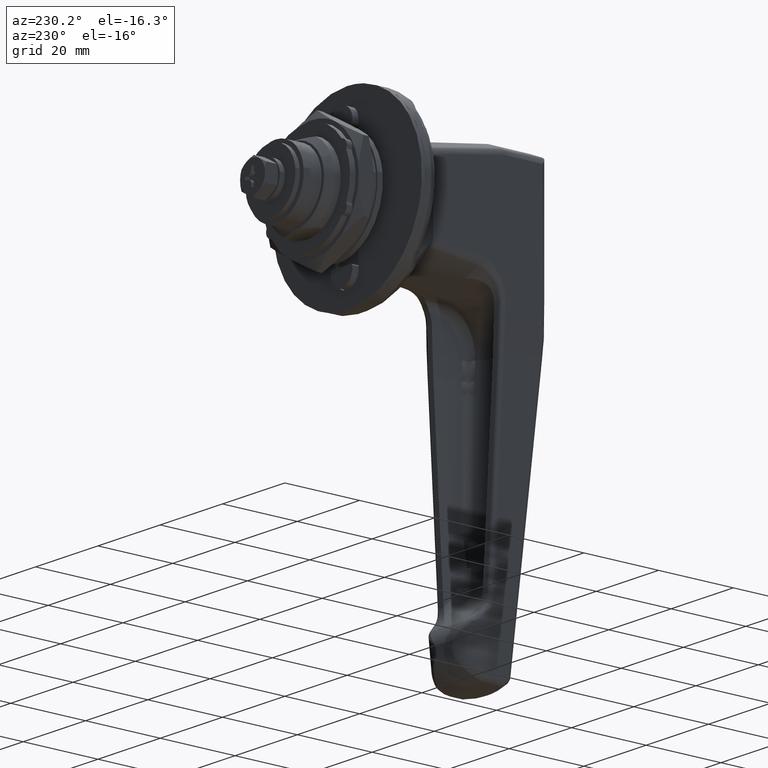
[diagram: clean part render]
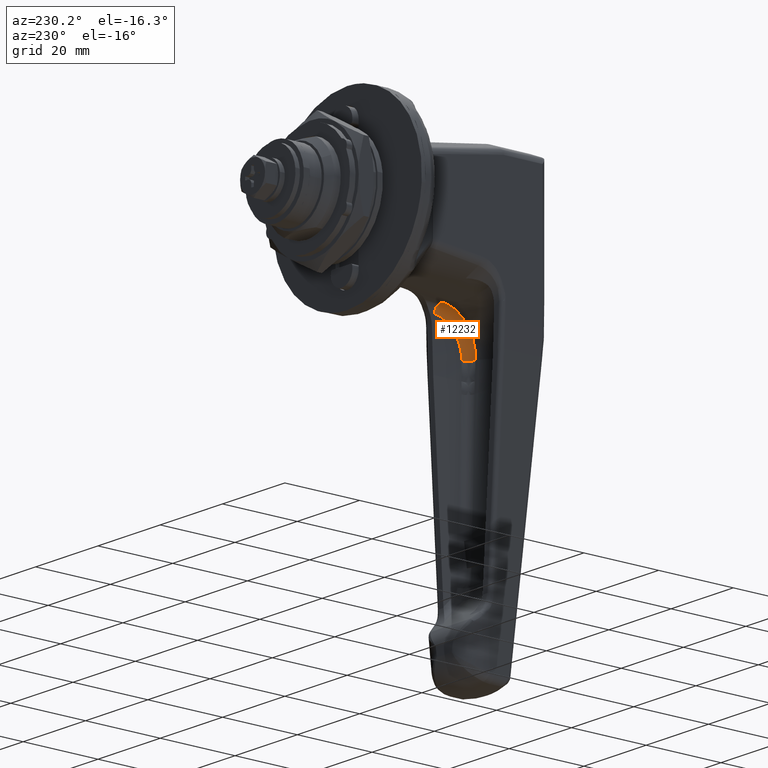
[diagram: same view with one face highlighted and labeled with its STEP entity id]
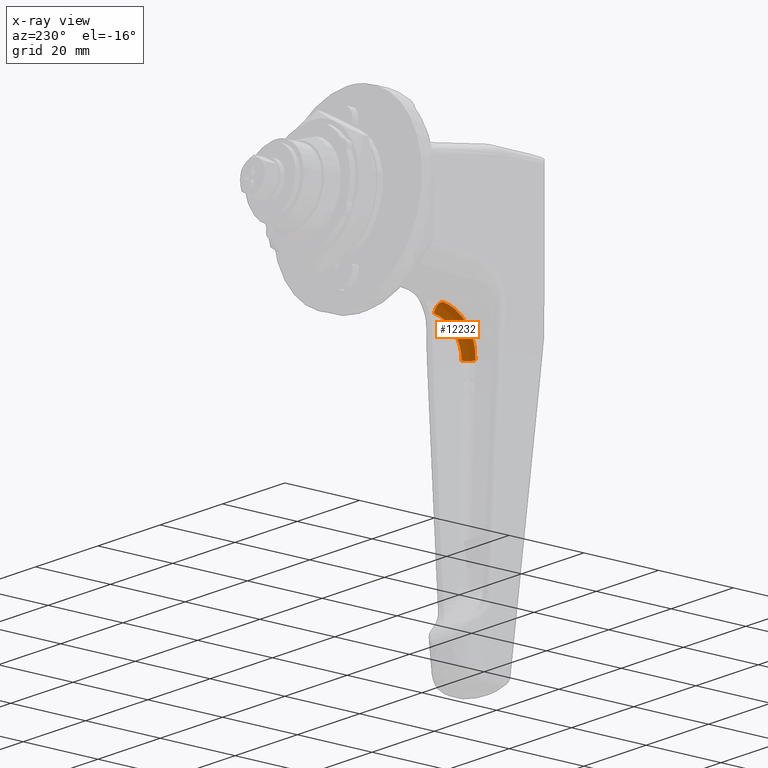
[diagram: x-ray of the same camera — body ghosted, the highlighted face saturated]
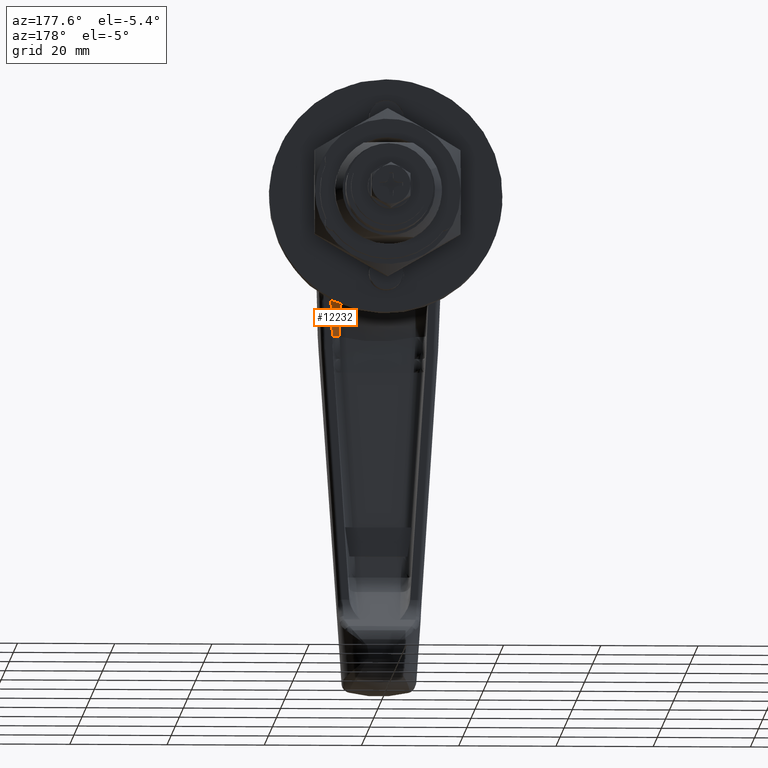
[diagram: same view with one face highlighted and labeled with its STEP entity id]
A machine part, auxiliary view. The second image highlights one B-rep face of the part: STEP entity #12232.
The next image is the same camera in x-ray: the body ghosted, the highlighted face saturated — about 0% of this face is hidden behind the body in this view.
A second angle (auxiliary view) of the same face is appended — the face is thin or edge-on in the first view.
In plain terms, the highlighted face is a freeform B-spline surface patch.
Its self-contained STEP definition (entity closure, byte-faithful):
#11947=CARTESIAN_POINT('',(-38.827132753668501,-9.825811324208001,-25.293020272678952));
#11948=VERTEX_POINT('',#11947);
#11949=CARTESIAN_POINT('',(-40.825359756270203,-7.827575260165410,-25.293235605889549));
#11950=VERTEX_POINT('',#11949);
#11951=CARTESIAN_POINT('',(-38.827132753668501,-9.825811324208004,-25.293020272678952));
#11952=CARTESIAN_POINT('',(-40.821833765164868,-9.822285317113190,-25.376918802749039));
#11953=CARTESIAN_POINT('',(-40.825359756270231,-7.827575260165391,-25.293235605889532));
#11961=(BOUNDED_CURVE()B_SPLINE_CURVE(2,(#11951,#11952,#11953),.UNSPECIFIED.,.F.,.U.)CURVE()GEOMETRIC_REPRESENTATION_ITEM()QUASI_UNIFORM_CURVE()RATIONAL_B_SPLINE_CURVE((1.0,0.707731474151055,1.0))REPRESENTATION_ITEM(''));
#11962=EDGE_CURVE('',#11948,#11950,#11961,.T.);
#11982=CARTESIAN_POINT('',(-31.733740276363132,-7.367207283891379,-14.664477515847787));
#11983=CARTESIAN_POINT('',(-31.759666388851542,-7.367335058542077,-14.667031630746806));
#11984=CARTESIAN_POINT('',(-31.785592512543570,-7.367462833247990,-14.669585746749561));
#11985=CARTESIAN_POINT('',(-32.459675658467944,-7.370784994970036,-14.735993149978787));
#11986=CARTESIAN_POINT('',(-33.090006154351073,-7.379128559498806,-14.862946249967198));
#11987=CARTESIAN_POINT('',(-34.009995141464401,-7.398239615525079,-15.143311234813460));
#11988=CARTESIAN_POINT('',(-34.312385393244732,-7.405711008746296,-15.251867109291059));
#11989=CARTESIAN_POINT('',(-34.908493224986124,-7.422678098883278,-15.499695681352835));
#11990=CARTESIAN_POINT('',(-35.202567313544620,-7.432200583886924,-15.639388387160830));
#11991=CARTESIAN_POINT('',(-36.052461828800901,-7.462782748078907,-16.095220856336340));
#11992=CARTESIAN_POINT('',(-36.582989781878823,-7.486018044667381,-16.450261984428014));
#11993=CARTESIAN_POINT('',(-37.326264135005260,-7.523317123547712,-17.057669694612478));
#11994=CARTESIAN_POINT('',(-37.566295998190611,-7.536224972961261,-17.273815427783831));
#11995=CARTESIAN_POINT('',(-38.022656391838808,-7.562255210388173,-17.726263469280031));
#11996=CARTESIAN_POINT('',(-38.238353921765899,-7.575331015881240,-17.961689438249763));
#11997=CARTESIAN_POINT('',(-38.849416782917608,-7.614315592135065,-18.694594479859035));
#11998=CARTESIAN_POINT('',(-39.209064962556972,-7.639973596562852,-19.218479045071433));
#11999=CARTESIAN_POINT('',(-39.676570150201421,-7.676470437292002,-20.057698275057508));
#12000=CARTESIAN_POINT('',(-39.819591797836758,-7.688254495304435,-20.345384344995619));
#12001=CARTESIAN_POINT('',(-40.076293416339588,-7.710522769752092,-20.927447682798675));
#12002=CARTESIAN_POINT('',(-40.190692368783218,-7.721062842981081,-21.223077921303300));
#12003=CARTESIAN_POINT('',(-40.492835226963109,-7.750708400914422,-22.123511070831590));
#12004=CARTESIAN_POINT('',(-40.640172752273941,-7.767880839476780,-22.743858830112941));
#12005=CARTESIAN_POINT('',(-40.820396801355422,-7.795815794734423,-24.012854935592642));
#12006=CARTESIAN_POINT('',(-40.852183685613589,-7.806368231074463,-24.650984423185687));
#12007=CARTESIAN_POINT('',(-40.824312611692100,-7.813783011614492,-25.318313050741153));
#12008=CARTESIAN_POINT('',(-40.823240577652889,-7.814068214013029,-25.343981204257410));
#12009=CARTESIAN_POINT('',(-40.822168538451812,-7.814353417784822,-25.369649481366395));
#12010=CARTESIAN_POINT('',(-31.733964976334050,-7.374848545998969,-14.662009563178229));
#12011=CARTESIAN_POINT('',(-31.759897837848115,-7.374976335297571,-14.664564893845100));
#12012=CARTESIAN_POINT('',(-31.785830704976942,-7.375104124623842,-14.667120225065235));
#12013=CARTESIAN_POINT('',(-32.460087218549404,-7.378426656805705,-14.733559030730348));
#12014=CARTESIAN_POINT('',(-33.090574675730451,-7.386770544808445,-14.860581681631894));
#12015=CARTESIAN_POINT('',(-34.010767378994423,-7.405880890504196,-15.141097124511676));
#12016=CARTESIAN_POINT('',(-34.313220570165953,-7.413351721166508,-15.249711163732337));
#12017=CARTESIAN_POINT('',(-34.909441774737026,-7.430316727217745,-15.497669411798011));
#12018=CARTESIAN_POINT('',(-35.203566264477658,-7.439837618571626,-15.637433968452838));
#12019=CARTESIAN_POINT('',(-36.053588409927826,-7.470412624870462,-16.093493917660425));
#12020=CARTESIAN_POINT('',(-36.584170062295001,-7.493640110095297,-16.448702948569352));
#12021=CARTESIAN_POINT('',(-37.327479147667866,-7.530921087479184,-17.056368171496985));
#12022=CARTESIAN_POINT('',(-37.567514826337494,-7.543821457768055,-17.272601861197312));
#12023=CARTESIAN_POINT('',(-38.023867990818417,-7.569834131921616,-17.725223693383185));
#12024=CARTESIAN_POINT('',(-38.239554448221028,-7.582899837738392,-17.960735225773654));
#12025=CARTESIAN_POINT('',(-38.850564241248641,-7.621849353680530,-18.693891227161927));
#12026=CARTESIAN_POINT('',(-39.210150533986614,-7.647478644822052,-19.217932697037654));
#12027=CARTESIAN_POINT('',(-39.677533743215754,-7.683924076696485,-20.057363179478958));
#12028=CARTESIAN_POINT('',(-39.820509496411830,-7.695689218703866,-20.345115777750490));
#12029=CARTESIAN_POINT('',(-40.077112801478037,-7.717917289044333,-20.927301162287289));
#12030=CARTESIAN_POINT('',(-40.191459097899461,-7.728435985260658,-21.222987134720679));
#12031=CARTESIAN_POINT('',(-40.493435524945845,-7.758012932276992,-22.123572185365308));
#12032=CARTESIAN_POINT('',(-40.640651975831204,-7.775135089627966,-22.743998852013949));
#12033=CARTESIAN_POINT('',(-40.820628026955553,-7.802961124819952,-24.013107482315384));
#12034=CARTESIAN_POINT('',(-40.852290180694013,-7.813455915577293,-24.651268955970480));
#12035=CARTESIAN_POINT('',(-40.824295464288888,-7.820809086146070,-25.318607523382887));
#12036=CARTESIAN_POINT('',(-40.823218709404365,-7.821091909597906,-25.344275226234441));
#12037=CARTESIAN_POINT('',(-40.822141951923790,-7.821374733731633,-25.369942990971236));
#12038=CARTESIAN_POINT('',(-31.810962098780216,-9.993252063224045,-13.816325190708934));
#12039=CARTESIAN_POINT('',(-31.839204685951110,-9.993287859381333,-13.819328441445368));
#12040=CARTESIAN_POINT('',(-31.867445192617417,-9.993323652901678,-13.822331470945803));
#12041=CARTESIAN_POINT('',(-32.600968858449875,-9.994253359814035,-13.900332663834872));
#12042=CARTESIAN_POINT('',(-33.284690065012782,-9.996042609243835,-14.053225758828809));
#12043=CARTESIAN_POINT('',(-34.272862540869603,-9.999307297084767,-14.389634555842170));
#12044=CARTESIAN_POINT('',(-34.596010439797482,-10.000487469588021,-14.519710671653387));
#12045=CARTESIAN_POINT('',(-35.228893192598228,-10.002844577893651,-14.815264844575644));
#12046=CARTESIAN_POINT('',(-35.538970554449556,-10.004021815364096,-14.981225142406325));
#12047=CARTESIAN_POINT('',(-36.428145945492624,-10.007138812910881,-15.519333851385271));
#12048=CARTESIAN_POINT('',(-36.973627951084772,-10.008697946464368,-15.934266882565753));
#12049=CARTESIAN_POINT('',(-37.723422644883229,-10.008870630177993,-16.632232991754073));
#12050=CARTESIAN_POINT('',(-37.962973254097079,-10.008561007734299,-16.878850588284383));
#12051=CARTESIAN_POINT('',(-38.413480200230843,-10.006977455171272,-17.390864395232150));
#12052=CARTESIAN_POINT('',(-38.623847840134758,-10.005710440457886,-17.655287938463506));
#12053=CARTESIAN_POINT('',(-39.212809893558955,-10.000212289835302,-18.471878605786049));
#12054=CARTESIAN_POINT('',(-39.549606400202180,-9.994291197433354,-19.047090834401864));
#12055=CARTESIAN_POINT('',(-39.974481041629510,-9.980887682353972,-19.954097874223059));
#12056=CARTESIAN_POINT('',(-40.101937368060767,-9.975673561475974,-20.262755065600224));
#12057=CARTESIAN_POINT('',(-40.325979539545294,-9.963808518245052,-20.882799401131741));
#12058=CARTESIAN_POINT('',(-40.423220699826317,-9.957138703984628,-21.195544791169635));
#12059=CARTESIAN_POINT('',(-40.672326988757234,-9.934795705996404,-22.141784587724299));
#12060=CARTESIAN_POINT('',(-40.782127603140680,-9.916723446894084,-22.785335898118564));
#12061=CARTESIAN_POINT('',(-40.887645196253771,-9.873924702017780,-24.086304249728897));
#12062=CARTESIAN_POINT('',(-40.882883557690498,-9.849570665286855,-24.733008119118352));
#12063=CARTESIAN_POINT('',(-40.819413425136752,-9.821203580097622,-25.402446863331122));
#12064=CARTESIAN_POINT('',(-40.816994735287970,-9.820122580606583,-25.427957518971223));
#12065=CARTESIAN_POINT('',(-40.814577693931454,-9.819042317886037,-25.453450787463201));
#12066=CARTESIAN_POINT('',(-31.559401873038311,-9.999504674797416,-16.557555087665868));
#12067=CARTESIAN_POINT('',(-31.580130334263139,-9.999509302942860,-16.559650872042052));
#12068=CARTESIAN_POINT('',(-31.600858799980706,-9.999513931089316,-16.561746656872497));
#12069=CARTESIAN_POINT('',(-32.139800483536725,-9.999634263248925,-16.616237221696682));
#12070=CARTESIAN_POINT('',(-32.643703145069892,-9.999863276394734,-16.720943960387334));
#12071=CARTESIAN_POINT('',(-33.379074620327387,-10.000009480966892,-16.952421399793867));
#12072=CARTESIAN_POINT('',(-33.620766467819813,-10.000022164589341,-17.042074238630899));
#12073=CARTESIAN_POINT('',(-34.097184073857008,-9.999872494760176,-17.246751400994107));
#12074=CARTESIAN_POINT('',(-34.332194281465824,-9.999707985936464,-17.362122232965756));
#12075=CARTESIAN_POINT('',(-35.011335819563804,-9.998778673353197,-17.738519415938285));
#12076=CARTESIAN_POINT('',(-35.435203208425762,-9.997588245189769,-18.031604205679145));
#12077=CARTESIAN_POINT('',(-36.028942546275829,-9.994124061104733,-18.532604683649126));
#12078=CARTESIAN_POINT('',(-36.220664123465085,-9.992678018209556,-18.710823883279904));
#12079=CARTESIAN_POINT('',(-36.585137304552440,-9.989095653900233,-19.083718320345884));
#12080=CARTESIAN_POINT('',(-36.757385155822703,-9.986968445432629,-19.277671774329288));
#12081=CARTESIAN_POINT('',(-37.245298944539705,-9.979392933053486,-19.881190045947406));
#12082=CARTESIAN_POINT('',(-37.532389259225930,-9.972759316644705,-20.312230637471842));
#12083=CARTESIAN_POINT('',(-37.905460021517960,-9.959582190620971,-21.002036114190489));
#12084=CARTESIAN_POINT('',(-38.019568123244639,-9.954661046553099,-21.238393883227182));
#12085=CARTESIAN_POINT('',(-38.224327592040765,-9.943822075575444,-21.716383383283592));
#12086=CARTESIAN_POINT('',(-38.315552866720516,-9.937885315884627,-21.959045072936942));
#12087=CARTESIAN_POINT('',(-38.556407583596020,-9.918407587102623,-22.697811968600440));
#12088=CARTESIAN_POINT('',(-38.673736125585840,-9.903145130410550,-23.206342144250971));
#12089=CARTESIAN_POINT('',(-38.816919240445522,-9.867727421415362,-24.245726490241829));
#12090=CARTESIAN_POINT('',(-38.841903537456062,-9.847876943571269,-24.767967769445956));
#12091=CARTESIAN_POINT('',(-38.819203177488738,-9.824941644330675,-25.313714359313597));
#12092=CARTESIAN_POINT('',(-38.818330058291281,-9.824059488713068,-25.334705296252874));
#12093=CARTESIAN_POINT('',(-38.817456936986474,-9.823177330966313,-25.355696283855451));
#12094=CARTESIAN_POINT('',(-31.558666972674139,-9.999522940985987,-16.565563233005680));
#12095=CARTESIAN_POINT('',(-31.579373454318148,-9.999527478751579,-16.567656662955130));
#12096=CARTESIAN_POINT('',(-31.600079944919674,-9.999532016519149,-16.569750093810182));
#12097=CARTESIAN_POINT('',(-32.138451842619070,-9.999649999164349,-16.624179613704360));
#12098=CARTESIAN_POINT('',(-32.641823854318737,-9.999874478096709,-16.728765365141314));
#12099=CARTESIAN_POINT('',(-33.376438383806281,-10.000011552065361,-16.959980365538001));
#12100=CARTESIAN_POINT('',(-33.617883193861147,-10.000020788931735,-17.049531516395138));
#12101=CARTESIAN_POINT('',(-34.093820134779094,-9.999863660417121,-17.253978852385174));
#12102=CARTESIAN_POINT('',(-34.328596288356685,-9.999695124291014,-17.369220857223716));
#12103=CARTESIAN_POINT('',(-35.007069890470198,-9.998753501481597,-17.745201248662841));
#12104=CARTESIAN_POINT('',(-35.430535980387184,-9.997554540902625,-18.037967046375471));
#12105=CARTESIAN_POINT('',(-36.023737289409034,-9.994078761263211,-18.538442416890621));
#12106=CARTESIAN_POINT('',(-36.215288547934087,-9.992629014156059,-18.716476101158410));
#12107=CARTESIAN_POINT('',(-36.579445602847706,-9.989039987165603,-19.088988239677821));
#12108=CARTESIAN_POINT('',(-36.751548201637576,-9.986909833938695,-19.282745425252067));
#12109=CARTESIAN_POINT('',(-37.239060029169458,-9.979326915527594,-19.885658928222171));
#12110=CARTESIAN_POINT('',(-37.525931438872398,-9.972690385534021,-20.316280794197311));
#12111=CARTESIAN_POINT('',(-37.898738966764270,-9.959512981378962,-21.005440260509346));
#12112=CARTESIAN_POINT('',(-38.012770627055112,-9.954592455216345,-21.241578669576516));
#12113=CARTESIAN_POINT('',(-38.217400669493145,-9.943756201423188,-21.719130827591933));
#12114=CARTESIAN_POINT('',(-38.308572777665837,-9.937821553292897,-21.961573602279334));
#12115=CARTESIAN_POINT('',(-38.549299790852935,-9.918352536162466,-22.699679774800007));
#12116=CARTESIAN_POINT('',(-38.666586781827881,-9.903099087703007,-23.207769734150624));
#12117=CARTESIAN_POINT('',(-38.809767184257758,-9.867706016700293,-24.246277116855921));
#12118=CARTESIAN_POINT('',(-38.834791412734297,-9.847871041524227,-24.768089591997320));
#12119=CARTESIAN_POINT('',(-38.812170328988188,-9.824954787568734,-25.313402370982107));
#12120=CARTESIAN_POINT('',(-38.811300230709179,-9.824073335850866,-25.334377303741228));
#12121=CARTESIAN_POINT('',(-38.810430128236163,-9.823191879884288,-25.355352337602334));
#12129=(BOUNDED_SURFACE()B_SPLINE_SURFACE(3,2,((#11982,#12010,#12038,#12066,#12094),(#11983,#12011,#12039,#12067,#12095),(#11984,#12012,#12040,#12068,#12096),(#11985,#12013,#12041,#12069,#12097),(#11986,#12014,#12042,#12070,#12098),(#11987,#12015,#12043,#12071,#12099),(#11988,#12016,#12044,#12072,#12100),(#11989,#12017,#12045,#12073,#12101),(#11990,#12018,#12046,#12074,#12102),(#11991,#12019,#12047,#12075,#12103),(#11992,#12020,#12048,#12076,#12104),(#11993,#12021,#12049,#12077,#12105),(#11994,#12022,#12050,#12078,#12106),(#11995,#12023,#12051,#12079,#12107),(#11996,#12024,#12052,#12080,#12108),(#11997,#12025,#12053,#12081,#12109),(#11998,#12026,#12054,#12082,#12110),(#11999,#12027,#12055,#12083,#12111),(#12000,#12028,#12056,#12084,#12112),(#12001,#12029,#12057,#12085,#12113),(#12002,#12030,#12058,#12086,#12114),(#12003,#12031,#12059,#12087,#12115),(#12004,#12032,#12060,#12088,#12116),(#12005,#12033,#12061,#12089,#12117),(#12006,#12034,#12062,#12090,#12118),(#12007,#12035,#12063,#12091,#12119),(#12008,#12036,#12064,#12092,#12120),(#12009,#12037,#12065,#12093,#12121)),.UNSPECIFIED.,.F.,.F.,.U.)B_SPLINE_SURFACE_WITH_KNOTS((4,2,2,2,2,2,2,2,2,2,2,2,2,4),(3,1,1,3),(0.0,0.078176327175923,2.032584498841028,3.009788584673580,3.986992670506132,5.941400842171238,6.918604928003789,7.895809013836343,9.850217185501448,10.827421271334000,11.804625357166550,13.759033528831660,15.713441700496761,15.791618025626240),(0.0,0.020347643788673,4.089470924559251,4.109840233053459),.UNSPECIFIED.)GEOMETRIC_REPRESENTATION_ITEM()RATIONAL_B_SPLINE_SURFACE(((1.004111114820138,1.002055557410069,0.588929480035054,1.002057746019544,1.004115492039089),(1.004110897863588,1.002055448931794,0.588951173528348,1.002057637425770,1.004115274851539),(1.004110680907038,1.002055340453519,0.588972867021641,1.002057528831995,1.004115057663989),(1.004105040036762,1.002052520018381,0.589536897845123,1.002054705393860,1.004109410787721),(1.004090067001077,1.002045033500539,0.591034052226254,1.002047210904913,1.004094421809826),(1.004054713781869,1.002027356890935,0.594569021897021,1.002029515474529,1.004059030949057),(1.004040776878013,1.002020388439007,0.595962573419040,1.002022539603095,1.004045079206190),(1.004008758280162,1.002004379140081,0.599164114179368,1.002006513258621,1.004013026517242),(1.003990622806403,1.001995311403202,0.600977480858291,1.001997435867068,1.003994871734137),(1.003931616367233,1.001965808183617,0.606877536850881,1.001967901234580,1.003935802469160),(1.003885871867725,1.001942935933862,0.611451531015782,1.001945004632102,1.003890009264203),(1.003809506605997,1.001904753302999,0.619087296305474,1.001906781347123,1.003813562694246),(1.003782611851489,1.001891305925744,0.621776503784177,1.001893319652070,1.003786639304140),(1.003727086855770,1.001863543427885,0.627328450119876,1.001865527594702,1.003731055189405),(1.003698561224277,1.001849280612138,0.630180729047425,1.001851249592937,1.003702499185874),(1.003611075897775,1.001805537948888,0.638928390017156,1.001807460355649,1.003614920711298),(1.003550242483258,1.001775121241629,0.645011125340984,1.001777011262871,1.003554022525743),(1.003456008169415,1.001728004084707,0.654433617799858,1.001729843938994,1.003459687877989),(1.003424209140481,1.001712104570241,0.657613203856170,1.001713927495870,1.003427854991740),(1.003360895689911,1.001680447844956,0.663943918074883,1.001682237064784,1.003364474129568),(1.003329239574541,1.001664619787271,0.667109214198836,1.001666392154523,1.003332784309046),(1.003234312153208,1.001617156076604,0.676601010500727,1.001618877907916,1.003237755815832),(1.003170886086676,1.001585443043338,0.682942985193508,1.001587131108897,1.003174262217793),(1.003044885911591,1.001522442955796,0.695541747269941,1.001524063943399,1.003048127886797),(1.002983339767168,1.001491669883584,0.701695748482962,1.001493258106236,1.002986516212472),(1.002920561965261,1.001460280982631,0.707972903172414,1.001461835784642,1.002923671569283),(1.002918147434470,1.001459073717235,0.708214332193773,1.001460627233837,1.002921254467674),(1.002915732903679,1.001457866451839,0.708455761215132,1.001459418683032,1.002918837366065)))REPRESENTATION_ITEM('')SURFACE());
#12130=CARTESIAN_POINT('',(-31.622391391173402,-9.999500490138122,-16.555808435561548));
#12131=VERTEX_POINT('',#12130);
#12132=CARTESIAN_POINT('',(-31.812009514778701,-7.382904629259170,-14.667201120375919));
#12133=VERTEX_POINT('',#12132);
#12134=CARTESIAN_POINT('',(-31.622391391173402,-9.999500490138116,-16.555808435561548));
#12135=CARTESIAN_POINT('',(-31.723692956091202,-9.997224180962785,-15.543700234774496));
#12136=CARTESIAN_POINT('',(-31.783359026799442,-9.173874647270553,-14.949422770862490));
#12137=CARTESIAN_POINT('',(-31.843025097507685,-8.350525113578323,-14.355145306950481));
#12138=CARTESIAN_POINT('',(-31.812009514778779,-7.382904629259178,-14.667201120375950));
#12146=(BOUNDED_CURVE()B_SPLINE_CURVE(2,(#12134,#12135,#12136,#12137,#12138),.UNSPECIFIED.,.F.,.U.)B_SPLINE_CURVE_WITH_KNOTS((3,2,3),(0.0,0.500000000000000,1.0),.UNSPECIFIED.)CURVE()GEOMETRIC_REPRESENTATION_ITEM()RATIONAL_B_SPLINE_CURVE((1.0,0.891345769192557,1.0,0.891345769192557,1.0))REPRESENTATION_ITEM(''));
#12147=EDGE_CURVE('',#12131,#12133,#12146,.T.);
#12148=ORIENTED_EDGE('',*,*,#12147,.F.);
#12149=CARTESIAN_POINT('',(-31.622391391173402,-9.999500490138139,-16.555808435561499));
#12150=CARTESIAN_POINT('',(-32.144199900607923,-9.999619155184787,-16.608570102631258));
#12151=CARTESIAN_POINT('',(-32.651160492658612,-9.999854731590432,-16.714272982502951));
#12152=CARTESIAN_POINT('',(-33.390545915764427,-10.000008482381251,-16.947902098866692));
#12153=CARTESIAN_POINT('',(-33.633472378663221,-10.000023266587840,-17.038384002194888));
#12154=CARTESIAN_POINT('',(-33.932649088009718,-9.999930688418315,-17.167465062389439));
#12155=CARTESIAN_POINT('',(-33.992259868547137,-9.999906542421782,-17.194081965870922));
#12156=CARTESIAN_POINT('',(-34.111028734041888,-9.999845027740804,-17.248929896109971));
#12157=CARTESIAN_POINT('',(-34.170239607999022,-9.999807599850207,-17.277189207754539));
#12158=CARTESIAN_POINT('',(-34.346218983932459,-9.999673175586144,-17.363921524035820));
#12159=CARTESIAN_POINT('',(-34.461626347194922,-9.999553966365109,-17.424475151758070));
#12160=CARTESIAN_POINT('',(-35.029351947760993,-9.998773484799912,-17.740546475001171));
#12161=CARTESIAN_POINT('',(-35.453994854136042,-9.997570386729732,-18.035604693482060));
#12162=CARTESIAN_POINT('',(-35.949126474300591,-9.994655347216233,-18.455389430077489));
#12163=CARTESIAN_POINT('',(-36.046353378511192,-9.994001009713401,-18.541917074521979));
#12164=CARTESIAN_POINT('',(-36.237176596275987,-9.992528962592340,-18.720159018522800));
#12165=CARTESIAN_POINT('',(-36.330920413163952,-9.991709314050691,-18.812044658714051));
#12166=CARTESIAN_POINT('',(-36.603922345504259,-9.989001116950519,-19.092714111334320));
#12167=CARTESIAN_POINT('',(-36.775838442229507,-9.986858212227494,-19.287248512433401));
#12168=CARTESIAN_POINT('',(-37.262542135830770,-9.979233700726027,-19.892221663410542));
#12169=CARTESIAN_POINT('',(-37.548534995771973,-9.972564353406948,-20.323846491331501));
#12170=CARTESIAN_POINT('',(-37.857897470445593,-9.961547525449976,-20.898778730896460));
#12171=CARTESIAN_POINT('',(-37.917382179263853,-9.959206506222838,-21.015667565774720));
#12172=CARTESIAN_POINT('',(-38.030358167853741,-9.954286060595951,-21.250733626835860));
#12173=CARTESIAN_POINT('',(-38.084003258702943,-9.951701694792616,-21.369181647738881));
#12174=CARTESIAN_POINT('',(-38.236581789974991,-9.943562676141596,-21.727214773389068));
#12175=CARTESIAN_POINT('',(-38.417772199121913,-9.931681742062024,-22.211751159424619));
#12176=CARTESIAN_POINT('',(-38.555367097087498,-9.917593744837120,-22.710310703848759));
#12177=CARTESIAN_POINT('',(-38.642122840964177,-9.906139146307636,-23.089517175658639));
#12178=CARTESIAN_POINT('',(-38.668296962259312,-9.902172786914942,-23.216801884433789));
#12179=CARTESIAN_POINT('',(-38.715086681644003,-9.893932694226093,-23.473158593195581));
#12180=CARTESIAN_POINT('',(-38.735732902698601,-9.889650220904688,-23.602482034864192));
#12181=CARTESIAN_POINT('',(-38.824316732121709,-9.867571006953515,-24.249858511988741));
#12182=CARTESIAN_POINT('',(-38.848938276051690,-9.847783482228701,-24.770210275184020));
#12183=CARTESIAN_POINT('',(-38.827132753668501,-9.825811324207972,-25.293020272678952));
#12184=B_SPLINE_CURVE_WITH_KNOTS('',3,(#12149,#12150,#12151,#12152,#12153,#12154,#12155,#12156,#12157,#12158,#12159,#12160,#12161,#12162,#12163,#12164,#12165,#12166,#12167,#12168,#12169,#12170,#12171,#12172,#12173,#12174,#12175,#12176,#12177,#12178,#12179,#12180,#12181,#12182,#12183),.UNSPECIFIED.,.F.,.U.,(4,2,2,2,2,2,2,2,2,2,2,2,2,1,2,2,2,4),(0.0,0.124999999999995,0.187499999999992,0.203124999999992,0.218749999999992,0.249999999999993,0.374999999999994,0.406249999999994,0.437499999999994,0.499999999999997,0.625000000000000,0.656250000000001,0.687500000000001,0.750000000000001,0.812500000000001,0.843750000000001,0.875000000000001,1.0),.UNSPECIFIED.);
#12185=EDGE_CURVE('',#12131,#11948,#12184,.T.);
#12186=ORIENTED_EDGE('',*,*,#12185,.T.);
#12187=ORIENTED_EDGE('',*,*,#11962,.T.);
#12188=CARTESIAN_POINT('',(-40.825359756270252,-7.827575260165362,-25.293235605889549));
#12189=CARTESIAN_POINT('',(-40.852529589947871,-7.820530363926583,-24.648407393807950));
#12190=CARTESIAN_POINT('',(-40.820566202609633,-7.810024875115288,-24.006983623195779));
#12191=CARTESIAN_POINT('',(-40.706864501845743,-7.792563958881102,-23.209449950297842));
#12192=CARTESIAN_POINT('',(-40.680398518596917,-7.788856032422538,-23.050239457069939));
#12193=CARTESIAN_POINT('',(-40.620489413005473,-7.781076245812965,-22.734825041231069));
#12194=CARTESIAN_POINT('',(-40.587003924303197,-7.776997510125772,-22.578296538648949));
#12195=CARTESIAN_POINT('',(-40.476099469983687,-7.764217295472520,-22.112198324796289));
#12196=CARTESIAN_POINT('',(-40.300410775494612,-7.745725887881040,-21.500018489191589));
#12197=CARTESIAN_POINT('',(-40.069509277954729,-7.724577967341402,-20.906260329578298));
#12198=CARTESIAN_POINT('',(-39.875234680183937,-7.707820083251415,-20.467977362084540));
#12199=CARTESIAN_POINT('',(-39.806954206058933,-7.702084763393725,-20.323057590877770));
#12200=CARTESIAN_POINT('',(-39.663209075309503,-7.690333621747667,-20.035612932426130));
#12201=CARTESIAN_POINT('',(-39.587580160200133,-7.684305629135382,-19.892824987707488));
#12202=CARTESIAN_POINT('',(-39.352011862245106,-7.666012022334219,-19.472225588536450));
#12203=CARTESIAN_POINT('',(-39.013776248275363,-7.640971663054387,-18.929774417885181));
#12204=CARTESIAN_POINT('',(-38.628162453240513,-7.615126729444379,-18.423303502030588));
#12205=CARTESIAN_POINT('',(-38.218672616583383,-7.589139521408146,-17.934951453087379));
#12206=CARTESIAN_POINT('',(-38.001992289595151,-7.576074513967380,-17.699832893952919));
#12207=CARTESIAN_POINT('',(-37.658430348534452,-7.556585735111536,-17.361214623862139));
#12208=CARTESIAN_POINT('',(-37.540669661765172,-7.550101282602617,-17.250588624770050));
#12209=CARTESIAN_POINT('',(-37.301341434045753,-7.537340881482384,-17.036342153163449));
#12210=CARTESIAN_POINT('',(-37.179494773899123,-7.531048574052822,-16.932432329714050));
#12211=CARTESIAN_POINT('',(-36.807485859982407,-7.512488047776656,-16.630223664007111));
#12212=CARTESIAN_POINT('',(-36.550869059587612,-7.500535755956782,-16.441424437285129));
#12213=CARTESIAN_POINT('',(-36.020477712203181,-7.477762918481962,-16.089059701908312));
#12214=CARTESIAN_POINT('',(-35.746703908397670,-7.466941996615193,-15.925493121059951));
#12215=CARTESIAN_POINT('',(-35.322869990756907,-7.451790204280999,-15.699503562191421));
#12216=CARTESIAN_POINT('',(-35.179392752995220,-7.446919724401992,-15.627405917310741));
#12217=CARTESIAN_POINT('',(-34.960803630721607,-7.439915210426696,-15.524215473342689));
#12218=CARTESIAN_POINT('',(-34.887356229436541,-7.437630158531755,-15.490638918098300));
#12219=CARTESIAN_POINT('',(-34.740132323526922,-7.433189455524685,-15.425506321668131));
#12220=CARTESIAN_POINT('',(-34.666257600961693,-7.431030580464496,-15.393902695791519));
#12221=CARTESIAN_POINT('',(-34.295581825297610,-7.420550188288139,-15.240654497719520));
#12222=CARTESIAN_POINT('',(-33.694185004563678,-7.405791106692171,-15.025917747682319));
#12223=CARTESIAN_POINT('',(-33.076457366212701,-7.395388863716572,-14.870974272612200));
#12224=CARTESIAN_POINT('',(-32.450489676995062,-7.387337990345618,-14.746190548579550));
#12225=CARTESIAN_POINT('',(-32.133386690216277,-7.384488026935276,-14.698875326518269));
#12226=CARTESIAN_POINT('',(-31.812009514778801,-7.382904629259170,-14.667201120375919));
#12227=B_SPLINE_CURVE_WITH_KNOTS('',3,(#12188,#12189,#12190,#12191,#12192,#12193,#12194,#12195,#12196,#12197,#12198,#12199,#12200,#12201,#12202,#12203,#12204,#12205,#12206,#12207,#12208,#12209,#12210,#12211,#12212,#12213,#12214,#12215,#12216,#12217,#12218,#12219,#12220,#12221,#12222,#12223,#12224,#12225,#12226),.UNSPECIFIED.,.F.,.U.,(4,2,2,2,1,2,2,2,1,2,2,2,2,2,2,2,2,2,1,2,4),(0.0,0.124999999999997,0.156249999999995,0.187499999999994,0.249999999999992,0.312499999999990,0.343749999999990,0.374999999999989,0.437499999999989,0.499999999999989,0.562499999999989,0.593749999999990,0.624999999999990,0.687499999999993,0.749999999999995,0.781249999999997,0.796874999999997,0.812499999999997,0.874999999999998,0.937499999999999,1.0),.UNSPECIFIED.);
#12228=EDGE_CURVE('',#11950,#12133,#12227,.T.);
#12229=ORIENTED_EDGE('',*,*,#12228,.T.);
#12230=EDGE_LOOP('',(#12148,#12186,#12187,#12229));
#12231=FACE_OUTER_BOUND('',#12230,.T.);
#12232=ADVANCED_FACE('',(#12231),#12129,.F.);